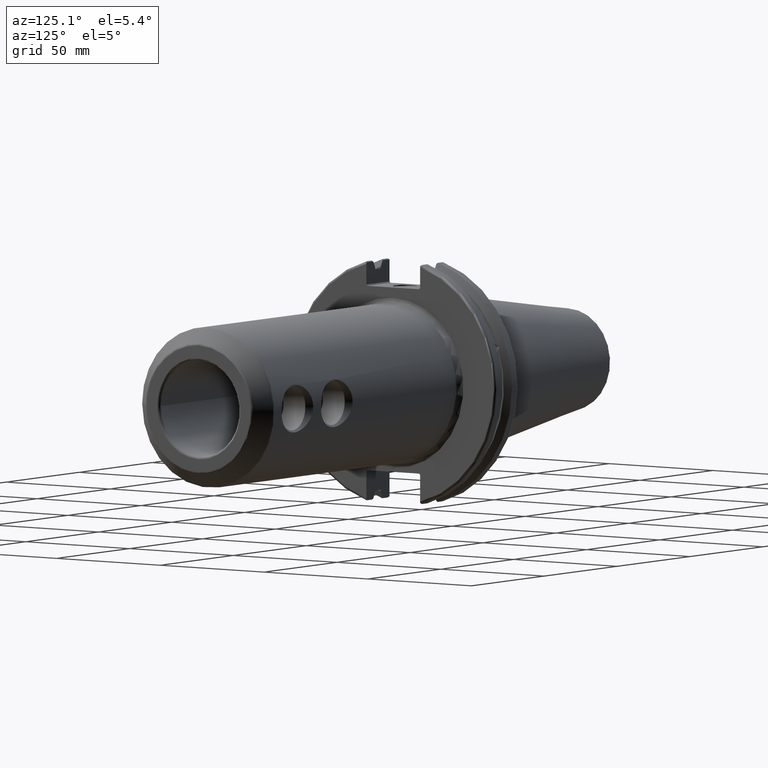
[diagram: clean part render]
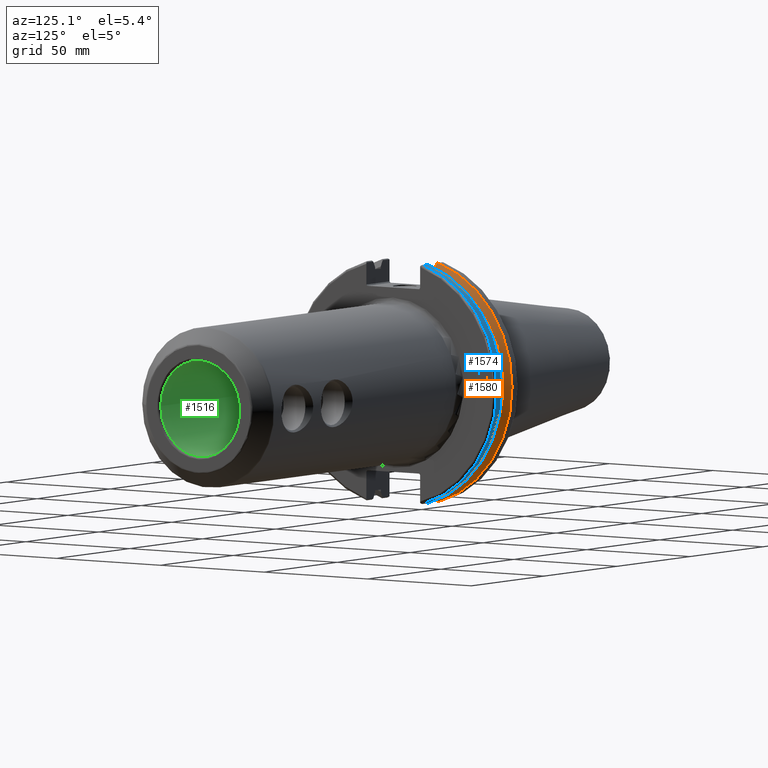
[diagram: same view with three faces highlighted in distinct colors, each labeled with its STEP entity id]
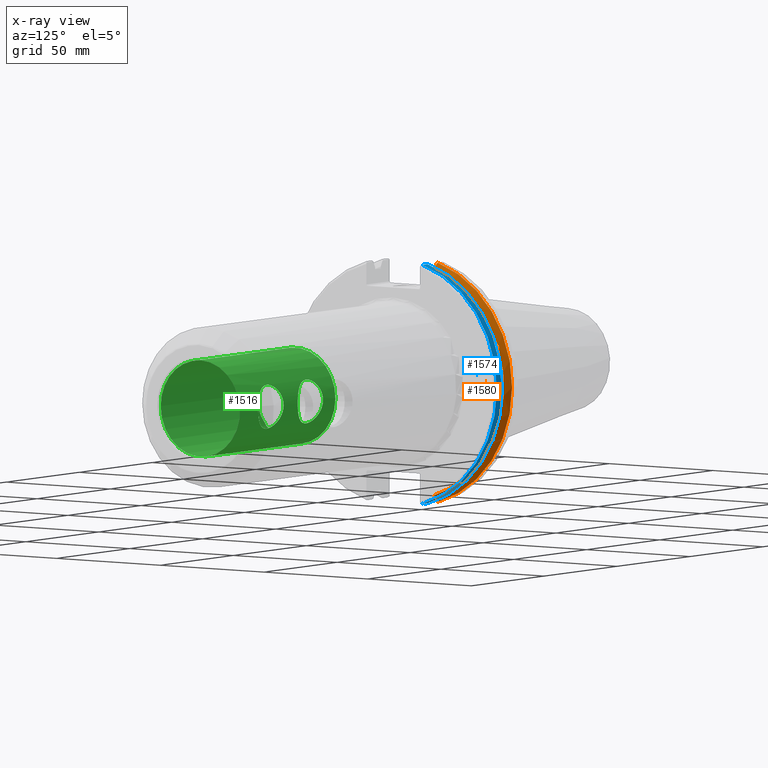
[diagram: x-ray of the same camera — body ghosted, the three highlighted faces saturated]
A machine part, auxiliary view with three faces highlighted in distinct colors.
The next image is the same camera in x-ray (body ghosted, the three faces saturated) — at least one of them is partly hidden behind the body in this view.
Their STEP definitions:

[orange] entity #1580 — the highlighted conical surface has half-angle 60 deg.
#23=(
BOUNDED_CURVE()
B_SPLINE_CURVE(2,(#3069,#3070,#3071),.UNSPECIFIED.,.F.,.F.)
B_SPLINE_CURVE_WITH_KNOTS((3,3),(0.,0.275823910675371),.UNSPECIFIED.)
CURVE()
GEOMETRIC_REPRESENTATION_ITEM()
RATIONAL_B_SPLINE_CURVE((1.,1.00038235575501,1.00012873637129))
REPRESENTATION_ITEM('')
);
#28=(
BOUNDED_CURVE()
B_SPLINE_CURVE(2,(#3211,#3212,#3213),.UNSPECIFIED.,.F.,.F.)
B_SPLINE_CURVE_WITH_KNOTS((3,3),(0.,0.0648240472898098),.UNSPECIFIED.)
CURVE()
GEOMETRIC_REPRESENTATION_ITEM()
RATIONAL_B_SPLINE_CURVE((1.,1.00011477674852,1.00019140645975))
REPRESENTATION_ITEM('')
);
#29=(
BOUNDED_CURVE()
B_SPLINE_CURVE(2,(#3242,#3243,#3244),.UNSPECIFIED.,.F.,.F.)
B_SPLINE_CURVE_WITH_KNOTS((3,3),(0.0558332664507334,0.331657177124507),
 .UNSPECIFIED.)
CURVE()
GEOMETRIC_REPRESENTATION_ITEM()
RATIONAL_B_SPLINE_CURVE((1.00012873636786,1.0003823557448,1.))
REPRESENTATION_ITEM('')
);
#30=(
BOUNDED_CURVE()
B_SPLINE_CURVE(2,(#3259,#3260,#3261),.UNSPECIFIED.,.F.,.F.)
B_SPLINE_CURVE_WITH_KNOTS((3,3),(0.325260944932395,0.390084992222207),
 .UNSPECIFIED.)
CURVE()
GEOMETRIC_REPRESENTATION_ITEM()
RATIONAL_B_SPLINE_CURVE((1.00019140645963,1.00011477674845,1.))
REPRESENTATION_ITEM('')
);
#205=FACE_OUTER_BOUND('',#314,.T.);
#314=EDGE_LOOP('',(#1434,#1435,#1436,#1437,#1438,#1439,#1440,#1441));
#373=CIRCLE('',#1698,46.4219772964944);
#395=CIRCLE('',#1752,49.2125);
#398=CIRCLE('',#1762,46.4219772964944);
#617=B_SPLINE_CURVE_WITH_KNOTS('',3,(#2890,#2891,#2892,#2893,#2894,#2895,
#2896,#2897,#2898,#2899,#2900,#2901,#2902,#2903),.UNSPECIFIED.,.F.,.F.,
(4,2,2,2,2,2,4),(0.426712868358719,0.441644498666906,0.48031331322313,0.518982127779354,
0.557650942335578,0.596319756891802,0.611251387199987),.UNSPECIFIED.);
#719=VERTEX_POINT('',#2887);
#720=VERTEX_POINT('',#2889);
#732=VERTEX_POINT('',#2964);
#759=VERTEX_POINT('',#3066);
#760=VERTEX_POINT('',#3068);
#781=VERTEX_POINT('',#3209);
#787=VERTEX_POINT('',#3241);
#788=VERTEX_POINT('',#3251);
#902=EDGE_CURVE('',#720,#719,#617,.T.);
#918=EDGE_CURVE('',#720,#732,#373,.T.);
#955=EDGE_CURVE('',#760,#759,#23,.T.);
#990=EDGE_CURVE('',#781,#759,#28,.T.);
#1004=EDGE_CURVE('',#787,#732,#29,.T.);
#1009=EDGE_CURVE('',#781,#788,#395,.T.);
#1011=EDGE_CURVE('',#787,#788,#30,.T.);
#1016=EDGE_CURVE('',#760,#719,#398,.T.);
#1434=ORIENTED_EDGE('',*,*,#902,.T.);
#1435=ORIENTED_EDGE('',*,*,#1016,.F.);
#1436=ORIENTED_EDGE('',*,*,#955,.T.);
#1437=ORIENTED_EDGE('',*,*,#990,.F.);
#1438=ORIENTED_EDGE('',*,*,#1009,.T.);
#1439=ORIENTED_EDGE('',*,*,#1011,.F.);
#1440=ORIENTED_EDGE('',*,*,#1004,.T.);
#1441=ORIENTED_EDGE('',*,*,#918,.F.);
#1502=CONICAL_SURFACE('',#1761,47.8172386482472,1.0471975511966);
#1580=ADVANCED_FACE('',(#205),#1502,.T.);
#1698=AXIS2_PLACEMENT_3D('',#2965,#1989,#1990);
#1752=AXIS2_PLACEMENT_3D('',#3253,#2142,#2143);
#1761=AXIS2_PLACEMENT_3D('',#3271,#2163,#2164);
#1762=AXIS2_PLACEMENT_3D('',#3272,#2165,#2166);
#1989=DIRECTION('center_axis',(1.,0.,0.));
#1990=DIRECTION('ref_axis',(0.,0.,-1.));
#2142=DIRECTION('center_axis',(1.,0.,0.));
#2143=DIRECTION('ref_axis',(0.,0.,-1.));
#2163=DIRECTION('center_axis',(-1.,0.,0.));
#2164=DIRECTION('ref_axis',(0.,1.,0.));
#2165=DIRECTION('center_axis',(1.,0.,0.));
#2166=DIRECTION('ref_axis',(0.,0.,-1.));
#2887=CARTESIAN_POINT('',(9.21910000000001,43.9096390749305,15.0646464421033));
#2889=CARTESIAN_POINT('',(9.2191,43.3201030900029,16.684383248648));
#2890=CARTESIAN_POINT('Ctrl Pts',(9.21910000000001,43.3201030900028,16.6843832486479));
#2891=CARTESIAN_POINT('Ctrl Pts',(9.20211843903392,43.361310694134,16.6592273018006));
#2892=CARTESIAN_POINT('Ctrl Pts',(9.18608675403322,43.4012416983557,16.6326763251437));
#2893=CARTESIAN_POINT('Ctrl Pts',(9.13238673845037,43.539103734322,16.5325130832406));
#2894=CARTESIAN_POINT('Ctrl Pts',(9.09621610663555,43.6406982153492,16.4411807953719));
#2895=CARTESIAN_POINT('Ctrl Pts',(9.04690868251975,43.8110833825827,16.2291323464527));
#2896=CARTESIAN_POINT('Ctrl Pts',(9.0341,43.8794096049168,16.10796730316));
#2897=CARTESIAN_POINT('Ctrl Pts',(9.03409999999999,43.9675796948952,15.8657219718732));
#2898=CARTESIAN_POINT('Ctrl Pts',(9.04690868251975,43.9931221605126,15.7289849146254));
#2899=CARTESIAN_POINT('Ctrl Pts',(9.09621610663555,43.9989016655819,15.4570249042867));
#2900=CARTESIAN_POINT('Ctrl Pts',(9.13238673845037,43.9797830409458,15.3217566390708));
#2901=CARTESIAN_POINT('Ctrl Pts',(9.18608675403322,43.9385582852181,15.1564111356409));
#2902=CARTESIAN_POINT('Ctrl Pts',(9.20211843903391,43.9250360001461,15.1104047527575));
#2903=CARTESIAN_POINT('Ctrl Pts',(9.2191,43.9096390749305,15.0646464421033));
#2964=CARTESIAN_POINT('',(9.2191,12.95,44.5791147973604));
#2965=CARTESIAN_POINT('Origin',(9.2191,0.,0.));
#3066=CARTESIAN_POINT('',(7.88638960562424,12.95,-46.9780755322918));
#3068=CARTESIAN_POINT('',(9.2191,12.95,-44.5791147973604));
#3069=CARTESIAN_POINT('Ctrl Pts',(9.2191,12.95,-44.5791147973604));
#3070=CARTESIAN_POINT('Ctrl Pts',(8.57020449055505,12.95,-45.7494966802211));
#3071=CARTESIAN_POINT('Ctrl Pts',(7.88638960562424,12.95,-46.9780755322917));
#3209=CARTESIAN_POINT('',(7.60799096595127,13.4317035994433,-47.3440544806494));
#3211=CARTESIAN_POINT('Ctrl Pts',(7.60799096595127,13.4317035994433,-47.3440544806494));
#3212=CARTESIAN_POINT('Ctrl Pts',(7.74826896663819,13.1896660169966,-47.1601640966264));
#3213=CARTESIAN_POINT('Ctrl Pts',(7.88638960562424,12.95,-46.9780755322918));
#3241=CARTESIAN_POINT('',(7.88638960562424,12.95,46.9780755322918));
#3242=CARTESIAN_POINT('Ctrl Pts',(7.88638960562424,12.95,46.9780755322918));
#3243=CARTESIAN_POINT('Ctrl Pts',(8.57020449054228,12.95,45.7494966802441));
#3244=CARTESIAN_POINT('Ctrl Pts',(9.2191,12.95,44.5791147973604));
#3251=CARTESIAN_POINT('',(7.60799096595127,13.4317035994433,47.3440544806494));
#3253=CARTESIAN_POINT('Origin',(7.60799096595127,0.,0.));
#3259=CARTESIAN_POINT('Ctrl Pts',(7.88638960562424,12.95,46.9780755322918));
#3260=CARTESIAN_POINT('Ctrl Pts',(7.74826896663818,13.1896660169966,47.1601640966265));
#3261=CARTESIAN_POINT('Ctrl Pts',(7.60799096595127,13.4317035994433,47.3440544806494));
#3271=CARTESIAN_POINT('Origin',(8.41354548297563,0.,0.));
#3272=CARTESIAN_POINT('Origin',(9.2191,0.,0.));

[blue] entity #1574 — the highlighted cylindrical surface (partial cylindrical patch) has radius 49.2125 mm, axis along (1, 0, 0).
#126=CYLINDRICAL_SURFACE('',#1753,49.2125);
#199=FACE_OUTER_BOUND('',#308,.T.);
#308=EDGE_LOOP('',(#1411,#1412,#1413,#1414));
#369=CIRCLE('',#1691,49.2125);
#384=CIRCLE('',#1718,49.2125);
#463=LINE('',#3056,#555);
#492=LINE('',#3255,#584);
#555=VECTOR('',#2049,10.);
#584=VECTOR('',#2146,10.);
#726=VERTEX_POINT('',#2940);
#727=VERTEX_POINT('',#2944);
#756=VERTEX_POINT('',#3035);
#757=VERTEX_POINT('',#3044);
#910=EDGE_CURVE('',#727,#726,#369,.T.);
#948=EDGE_CURVE('',#756,#757,#384,.T.);
#951=EDGE_CURVE('',#727,#756,#463,.T.);
#1010=EDGE_CURVE('',#757,#726,#492,.T.);
#1411=ORIENTED_EDGE('',*,*,#948,.F.);
#1412=ORIENTED_EDGE('',*,*,#951,.F.);
#1413=ORIENTED_EDGE('',*,*,#910,.T.);
#1414=ORIENTED_EDGE('',*,*,#1010,.F.);
#1574=ADVANCED_FACE('',(#199),#126,.T.);
#1691=AXIS2_PLACEMENT_3D('',#2945,#1973,#1974);
#1718=AXIS2_PLACEMENT_3D('',#3045,#2044,#2045);
#1753=AXIS2_PLACEMENT_3D('',#3254,#2144,#2145);
#1973=DIRECTION('center_axis',(1.,0.,0.));
#1974=DIRECTION('ref_axis',(0.,0.,-1.));
#2044=DIRECTION('center_axis',(1.,0.,0.));
#2045=DIRECTION('ref_axis',(0.,1.,-6.12323399573677E-17));
#2049=DIRECTION('',(1.,0.,0.));
#2144=DIRECTION('center_axis',(1.,0.,0.));
#2145=DIRECTION('ref_axis',(0.,1.,0.));
#2146=DIRECTION('',(-1.,0.,0.));
#2940=CARTESIAN_POINT('',(14.6602090340487,13.4317035994433,47.3440544806494));
#2944=CARTESIAN_POINT('',(14.6602090340487,13.4317035994433,-47.3440544806494));
#2945=CARTESIAN_POINT('Origin',(14.6602090340487,0.,0.));
#3035=CARTESIAN_POINT('',(18.05,13.4317035994433,-47.3440544806494));
#3044=CARTESIAN_POINT('',(18.05,13.4317035994433,47.3440544806494));
#3045=CARTESIAN_POINT('Origin',(18.05,0.,0.));
#3056=CARTESIAN_POINT('',(16.8551045170244,13.4317035994433,-47.3440544806494));
#3254=CARTESIAN_POINT('Origin',(16.8551045170244,0.,0.));
#3255=CARTESIAN_POINT('',(16.8551045170244,13.4317035994433,47.3440544806494));

[green] entity #1516 — the highlighted cylindrical surface (bore or boss wall) has radius 19.05 mm, axis along (1, 0, 0).
#73=FACE_BOUND('',#232,.T.);
#74=FACE_BOUND('',#233,.T.);
#107=CYLINDRICAL_SURFACE('',#1643,19.05);
#141=FACE_OUTER_BOUND('',#231,.T.);
#231=EDGE_LOOP('',(#1081,#1082,#1083,#1084,#1085));
#232=EDGE_LOOP('',(#1086,#1087));
#233=EDGE_LOOP('',(#1088,#1089));
#343=CIRCLE('',#1640,19.05);
#344=CIRCLE('',#1641,19.05);
#346=CIRCLE('',#1644,19.05);
#412=LINE('',#2412,#504);
#504=VECTOR('',#1846,19.05);
#592=B_SPLINE_CURVE_WITH_KNOTS('',3,(#2256,#2257,#2258,#2259,#2260,#2261,
#2262,#2263,#2264,#2265),.UNSPECIFIED.,.F.,.F.,(4,2,2,2,4),(0.,0.331934523882445,
0.663869047764891,0.995214124430525,1.32655920109616),.UNSPECIFIED.);
#593=B_SPLINE_CURVE_WITH_KNOTS('',3,(#2266,#2267,#2268,#2269,#2270,#2271,
#2272,#2273,#2274,#2275,#2276,#2277,#2278,#2279,#2280,#2281,#2282,#2283,
#2284,#2285,#2286,#2287,#2288,#2289,#2290,#2291),.UNSPECIFIED.,.F.,.F.,
(4,2,2,2,2,2,2,2,2,2,2,2,4),(1.32655920109616,1.65790427776179,1.98924935442743,
2.32118387830987,2.65311840219232,2.98505292607476,3.31698744995721,3.64833252662284,
3.97967760328848,4.31102267995411,4.64236775661974,4.97430228050219,5.30623680438464),
 .UNSPECIFIED.);
#596=B_SPLINE_CURVE_WITH_KNOTS('',3,(#2339,#2340,#2341,#2342,#2343,#2344,
#2345,#2346,#2347,#2348),.UNSPECIFIED.,.F.,.F.,(4,2,2,2,4),(0.,0.331934523882445,
0.663869047764891,0.995214124430525,1.32655920109616),.UNSPECIFIED.);
#597=B_SPLINE_CURVE_WITH_KNOTS('',3,(#2349,#2350,#2351,#2352,#2353,#2354,
#2355,#2356,#2357,#2358,#2359,#2360,#2361,#2362,#2363,#2364,#2365,#2366,
#2367,#2368,#2369,#2370,#2371,#2372,#2373,#2374),.UNSPECIFIED.,.F.,.F.,
(4,2,2,2,2,2,2,2,2,2,2,2,4),(1.32655920109616,1.65790427776179,1.98924935442743,
2.32118387830987,2.65311840219232,2.98505292607476,3.31698744995721,3.64833252662284,
3.97967760328848,4.31102267995411,4.64236775661974,4.97430228050219,5.30623680438464),
 .UNSPECIFIED.);
#639=VERTEX_POINT('',#2253);
#640=VERTEX_POINT('',#2255);
#644=VERTEX_POINT('',#2336);
#645=VERTEX_POINT('',#2338);
#656=VERTEX_POINT('',#2405);
#657=VERTEX_POINT('',#2406);
#658=VERTEX_POINT('',#2411);
#799=EDGE_CURVE('',#640,#639,#592,.T.);
#800=EDGE_CURVE('',#639,#640,#593,.T.);
#806=EDGE_CURVE('',#645,#644,#596,.T.);
#807=EDGE_CURVE('',#644,#645,#597,.T.);
#822=EDGE_CURVE('',#656,#657,#343,.T.);
#823=EDGE_CURVE('',#657,#656,#344,.T.);
#825=EDGE_CURVE('',#657,#658,#412,.T.);
#826=EDGE_CURVE('',#658,#658,#346,.T.);
#1081=ORIENTED_EDGE('',*,*,#822,.F.);
#1082=ORIENTED_EDGE('',*,*,#823,.F.);
#1083=ORIENTED_EDGE('',*,*,#825,.T.);
#1084=ORIENTED_EDGE('',*,*,#826,.F.);
#1085=ORIENTED_EDGE('',*,*,#825,.F.);
#1086=ORIENTED_EDGE('',*,*,#799,.T.);
#1087=ORIENTED_EDGE('',*,*,#800,.T.);
#1088=ORIENTED_EDGE('',*,*,#806,.T.);
#1089=ORIENTED_EDGE('',*,*,#807,.T.);
#1516=ADVANCED_FACE('',(#141,#73,#74),#107,.F.);
#1640=AXIS2_PLACEMENT_3D('',#2407,#1838,#1839);
#1641=AXIS2_PLACEMENT_3D('',#2408,#1840,#1841);
#1643=AXIS2_PLACEMENT_3D('',#2410,#1844,#1845);
#1644=AXIS2_PLACEMENT_3D('',#2413,#1847,#1848);
#1838=DIRECTION('center_axis',(-1.,0.,0.));
#1839=DIRECTION('ref_axis',(0.,-1.,1.83697019872103E-16));
#1840=DIRECTION('center_axis',(-1.,0.,0.));
#1841=DIRECTION('ref_axis',(0.,-1.,1.83697019872103E-16));
#1844=DIRECTION('center_axis',(1.,0.,0.));
#1845=DIRECTION('ref_axis',(0.,1.,0.));
#1846=DIRECTION('',(-1.,0.,0.));
#1847=DIRECTION('center_axis',(1.,0.,0.));
#1848=DIRECTION('ref_axis',(0.,0.,-1.));
#2253=CARTESIAN_POINT('',(111.6614,19.05,-2.52802033150456E-16));
#2255=CARTESIAN_POINT('',(103.,16.9671049398535,8.6614));
#2256=CARTESIAN_POINT('Ctrl Pts',(103.,16.9671049398535,8.6614));
#2257=CARTESIAN_POINT('Ctrl Pts',(104.106448412941,16.9671049398535,8.6614));
#2258=CARTESIAN_POINT('Ctrl Pts',(105.273102772378,17.0868359907323,8.43694178123282));
#2259=CARTESIAN_POINT('Ctrl Pts',(107.400877106761,17.4974466762178,7.54859519482672));
#2260=CARTESIAN_POINT('Ctrl Pts',(108.363774694222,17.7803456056901,6.88529465491626));
#2261=CARTESIAN_POINT('Ctrl Pts',(109.883943702181,18.2964780413952,5.36512564695767));
#2262=CARTESIAN_POINT('Ctrl Pts',(110.548252273359,18.5660177600741,4.40174458880804));
#2263=CARTESIAN_POINT('Ctrl Pts',(111.437392289839,18.9449330711284,2.27197759143805));
#2264=CARTESIAN_POINT('Ctrl Pts',(111.6614,19.05,1.10448358888545));
#2265=CARTESIAN_POINT('Ctrl Pts',(111.6614,19.05,1.66533453693773E-15));
#2266=CARTESIAN_POINT('Ctrl Pts',(111.6614,19.05,2.77555756156289E-16));
#2267=CARTESIAN_POINT('Ctrl Pts',(111.6614,19.05,-1.10448358888545));
#2268=CARTESIAN_POINT('Ctrl Pts',(111.437392289839,18.9449330711284,-2.27197759143804));
#2269=CARTESIAN_POINT('Ctrl Pts',(110.548252273359,18.5660177600741,-4.40174458880804));
#2270=CARTESIAN_POINT('Ctrl Pts',(109.883943702181,18.2964780413952,-5.36512564695767));
#2271=CARTESIAN_POINT('Ctrl Pts',(108.363774694222,17.7803456056901,-6.88529465491626));
#2272=CARTESIAN_POINT('Ctrl Pts',(107.400877106761,17.4974466762178,-7.54859519482672));
#2273=CARTESIAN_POINT('Ctrl Pts',(105.273102772378,17.0868359907323,-8.43694178123282));
#2274=CARTESIAN_POINT('Ctrl Pts',(104.106448412942,16.9671049398535,-8.6614));
#2275=CARTESIAN_POINT('Ctrl Pts',(101.893551587059,16.9671049398535,-8.6614));
#2276=CARTESIAN_POINT('Ctrl Pts',(100.726897227622,17.0868359907323,-8.43694178123282));
#2277=CARTESIAN_POINT('Ctrl Pts',(98.5991228932389,17.4974466762178,-7.54859519482672));
#2278=CARTESIAN_POINT('Ctrl Pts',(97.6362253057779,17.7803456056901,-6.88529465491626));
#2279=CARTESIAN_POINT('Ctrl Pts',(96.1160562978193,18.2964780413952,-5.36512564695767));
#2280=CARTESIAN_POINT('Ctrl Pts',(95.4517477266408,18.5660177600741,-4.40174458880804));
#2281=CARTESIAN_POINT('Ctrl Pts',(94.5626077101614,18.9449330711284,-2.27197759143805));
#2282=CARTESIAN_POINT('Ctrl Pts',(94.3386,19.05,-1.10448358888545));
#2283=CARTESIAN_POINT('Ctrl Pts',(94.3386,19.05,1.10448358888544));
#2284=CARTESIAN_POINT('Ctrl Pts',(94.5626077101614,18.9449330711284,2.27197759143805));
#2285=CARTESIAN_POINT('Ctrl Pts',(95.4517477266408,18.5660177600741,4.40174458880804));
#2286=CARTESIAN_POINT('Ctrl Pts',(96.1160562978193,18.2964780413952,5.36512564695766));
#2287=CARTESIAN_POINT('Ctrl Pts',(97.6362253057779,17.7803456056901,6.88529465491625));
#2288=CARTESIAN_POINT('Ctrl Pts',(98.5991228932389,17.4974466762178,7.54859519482672));
#2289=CARTESIAN_POINT('Ctrl Pts',(100.726897227622,17.0868359907323,8.43694178123282));
#2290=CARTESIAN_POINT('Ctrl Pts',(101.893551587059,16.9671049398535,8.6614));
#2291=CARTESIAN_POINT('Ctrl Pts',(103.,16.9671049398535,8.6614));
#2336=CARTESIAN_POINT('',(138.6614,19.05,-8.07913545463033E-16));
#2338=CARTESIAN_POINT('',(130.,16.9671049398535,8.6614));
#2339=CARTESIAN_POINT('Ctrl Pts',(130.,16.9671049398535,8.6614));
#2340=CARTESIAN_POINT('Ctrl Pts',(131.106448412941,16.9671049398535,8.6614));
#2341=CARTESIAN_POINT('Ctrl Pts',(132.273102772378,17.0868359907323,8.43694178123283));
#2342=CARTESIAN_POINT('Ctrl Pts',(134.400877106761,17.4974466762178,7.54859519482673));
#2343=CARTESIAN_POINT('Ctrl Pts',(135.363774694222,17.7803456056901,6.88529465491626));
#2344=CARTESIAN_POINT('Ctrl Pts',(136.883943702181,18.2964780413952,5.36512564695767));
#2345=CARTESIAN_POINT('Ctrl Pts',(137.548252273359,18.5660177600741,4.40174458880806));
#2346=CARTESIAN_POINT('Ctrl Pts',(138.437392289839,18.9449330711284,2.27197759143806));
#2347=CARTESIAN_POINT('Ctrl Pts',(138.6614,19.05,1.10448358888545));
#2348=CARTESIAN_POINT('Ctrl Pts',(138.6614,19.05,2.77555756156289E-16));
#2349=CARTESIAN_POINT('Ctrl Pts',(138.6614,19.05,0.));
#2350=CARTESIAN_POINT('Ctrl Pts',(138.6614,19.05,-1.10448358888545));
#2351=CARTESIAN_POINT('Ctrl Pts',(138.437392289839,18.9449330711284,-2.27197759143806));
#2352=CARTESIAN_POINT('Ctrl Pts',(137.548252273359,18.5660177600741,-4.40174458880806));
#2353=CARTESIAN_POINT('Ctrl Pts',(136.883943702181,18.2964780413952,-5.36512564695767));
#2354=CARTESIAN_POINT('Ctrl Pts',(135.363774694222,17.7803456056901,-6.88529465491626));
#2355=CARTESIAN_POINT('Ctrl Pts',(134.400877106761,17.4974466762178,-7.54859519482672));
#2356=CARTESIAN_POINT('Ctrl Pts',(132.273102772378,17.0868359907323,-8.43694178123282));
#2357=CARTESIAN_POINT('Ctrl Pts',(131.106448412942,16.9671049398535,-8.6614));
#2358=CARTESIAN_POINT('Ctrl Pts',(128.893551587059,16.9671049398535,-8.6614));
#2359=CARTESIAN_POINT('Ctrl Pts',(127.726897227622,17.0868359907323,-8.43694178123283));
#2360=CARTESIAN_POINT('Ctrl Pts',(125.599122893239,17.4974466762178,-7.54859519482673));
#2361=CARTESIAN_POINT('Ctrl Pts',(124.636225305778,17.7803456056901,-6.88529465491626));
#2362=CARTESIAN_POINT('Ctrl Pts',(123.116056297819,18.2964780413952,-5.36512564695767));
#2363=CARTESIAN_POINT('Ctrl Pts',(122.451747726641,18.5660177600741,-4.40174458880806));
#2364=CARTESIAN_POINT('Ctrl Pts',(121.562607710161,18.9449330711284,-2.27197759143806));
#2365=CARTESIAN_POINT('Ctrl Pts',(121.3386,19.05,-1.10448358888545));
#2366=CARTESIAN_POINT('Ctrl Pts',(121.3386,19.05,1.10448358888544));
#2367=CARTESIAN_POINT('Ctrl Pts',(121.562607710161,18.9449330711284,2.27197759143806));
#2368=CARTESIAN_POINT('Ctrl Pts',(122.451747726641,18.5660177600741,4.40174458880805));
#2369=CARTESIAN_POINT('Ctrl Pts',(123.116056297819,18.2964780413952,5.36512564695766));
#2370=CARTESIAN_POINT('Ctrl Pts',(124.636225305778,17.7803456056901,6.88529465491625));
#2371=CARTESIAN_POINT('Ctrl Pts',(125.599122893239,17.4974466762178,7.54859519482672));
#2372=CARTESIAN_POINT('Ctrl Pts',(127.726897227622,17.0868359907323,8.43694178123282));
#2373=CARTESIAN_POINT('Ctrl Pts',(128.893551587059,16.9671049398535,8.6614));
#2374=CARTESIAN_POINT('Ctrl Pts',(130.,16.9671049398535,8.6614));
#2405=CARTESIAN_POINT('',(151.4,-2.33295215237571E-15,19.05));
#2406=CARTESIAN_POINT('',(151.4,-19.05,-2.33295215237571E-15));
#2407=CARTESIAN_POINT('Origin',(151.4,0.,0.));
#2408=CARTESIAN_POINT('Origin',(151.4,0.,0.));
#2410=CARTESIAN_POINT('Origin',(119.1,0.,0.));
#2411=CARTESIAN_POINT('',(85.8,-19.05,-2.33295215237571E-15));
#2412=CARTESIAN_POINT('',(119.1,-19.05,-2.33295215237571E-15));
#2413=CARTESIAN_POINT('Origin',(85.8,0.,0.));